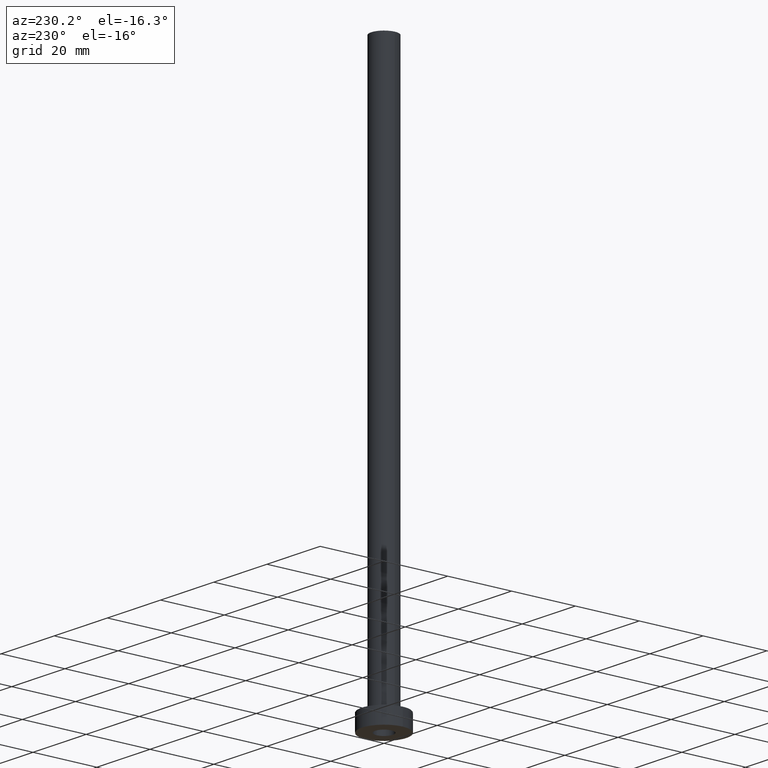
[diagram: clean part render]
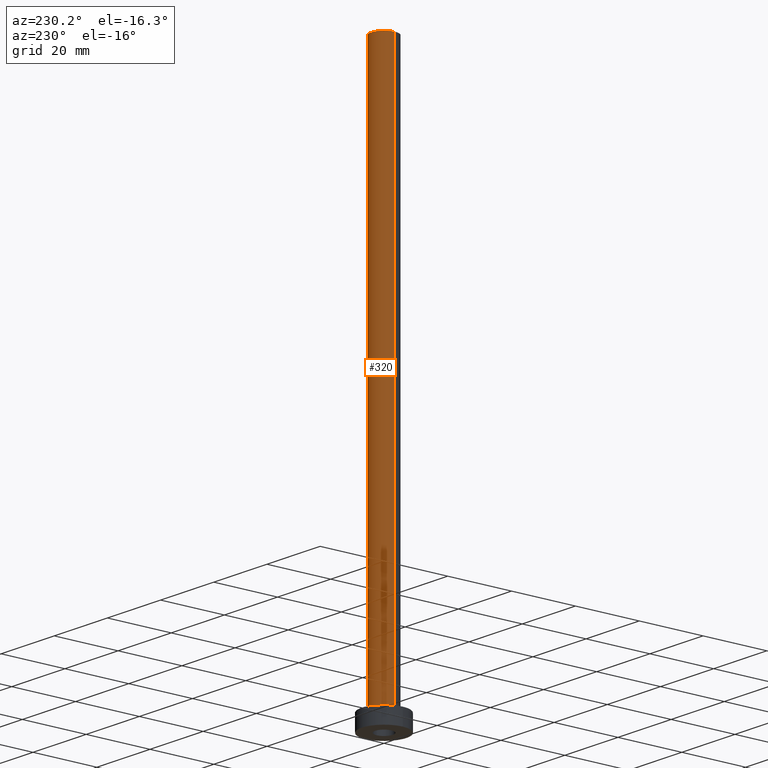
[diagram: same view with one face highlighted and labeled with its STEP entity id]
A machine part, auxiliary view. The second image highlights one B-rep face of the part: STEP entity #320.
In plain terms, the highlighted cylindrical surface (edge-blend (fillet) strip) has radius 4 mm, axis along (-0, -0, -1).
Its self-contained STEP definition (entity closure, byte-faithful):
#4 = DIRECTION ( 'NONE',  ( 0.000000000000000000, 0.000000000000000000, 1.000000000000000000 ) ) ;
#11 = CIRCLE ( 'NONE', #108, 4.000000000000000000 ) ;
#37 = DIRECTION ( 'NONE',  ( 0.000000000000000000, 0.000000000000000000, 1.000000000000000000 ) ) ;
#39 = CARTESIAN_POINT ( 'NONE',  ( 0.000000000000000000, 0.000000000000000000, 5.500000000000005329 ) ) ;
#46 = DIRECTION ( 'NONE',  ( -1.000000000000000000, 0.000000000000000000, 0.000000000000000000 ) ) ;
#54 = VERTEX_POINT ( 'NONE', #397 ) ;
#58 = ORIENTED_EDGE ( 'NONE', *, *, #168, .T. ) ;
#60 = VERTEX_POINT ( 'NONE', #173 ) ;
#75 = CARTESIAN_POINT ( 'NONE',  ( 0.000000000000000000, 0.000000000000000000, 175.0000000000000284 ) ) ;
#76 = CARTESIAN_POINT ( 'NONE',  ( -4.000000000000000000, 0.000000000000000000, 175.0000000000000284 ) ) ;
#100 = VERTEX_POINT ( 'NONE', #430 ) ;
#108 = AXIS2_PLACEMENT_3D ( 'NONE', #353, #37, #256 ) ;
#111 = DIRECTION ( 'NONE',  ( -0.000000000000000000, -0.000000000000000000, -1.000000000000000000 ) ) ;
#125 = ORIENTED_EDGE ( 'NONE', *, *, #164, .T. ) ;
#155 = ORIENTED_EDGE ( 'NONE', *, *, #326, .F. ) ;
#164 = EDGE_CURVE ( 'NONE', #54, #100, #391, .T. ) ;
#168 = EDGE_CURVE ( 'NONE', #100, #60, #383, .T. ) ;
#173 = CARTESIAN_POINT ( 'NONE',  ( -4.000000000000000000, 0.000000000000000000, 5.500000000000005329 ) ) ;
#177 = LINE ( 'NONE', #331, #394 ) ;
#209 = VECTOR ( 'NONE', #111, 1000.000000000000000 ) ;
#213 = CYLINDRICAL_SURFACE ( 'NONE', #309, 4.000000000000000000 ) ;
#253 = FACE_OUTER_BOUND ( 'NONE', #370, .T. ) ;
#256 = DIRECTION ( 'NONE',  ( 1.000000000000000000, 0.000000000000000000, 0.000000000000000000 ) ) ;
#309 = AXIS2_PLACEMENT_3D ( 'NONE', #75, #398, #46 ) ;
#320 = ADVANCED_FACE ( 'NONE', ( #253 ), #213, .T. ) ;
#326 = EDGE_CURVE ( 'NONE', #451, #60, #177, .T. ) ;
#331 = CARTESIAN_POINT ( 'NONE',  ( -4.000000000000000000, 0.000000000000000000, 175.0000000000000284 ) ) ;
#353 = CARTESIAN_POINT ( 'NONE',  ( 0.000000000000000000, 0.000000000000000000, 175.0000000000000284 ) ) ;
#358 = DIRECTION ( 'NONE',  ( 1.000000000000000000, 0.000000000000000000, 0.000000000000000000 ) ) ;
#370 = EDGE_LOOP ( 'NONE', ( #437, #125, #58, #155 ) ) ;
#383 = CIRCLE ( 'NONE', #442, 4.000000000000000000 ) ;
#391 = LINE ( 'NONE', #434, #209 ) ;
#394 = VECTOR ( 'NONE', #436, 1000.000000000000000 ) ;
#397 = CARTESIAN_POINT ( 'NONE',  ( 4.000000000000000000, 4.898587196589412829E-16, 175.0000000000000284 ) ) ;
#398 = DIRECTION ( 'NONE',  ( -0.000000000000000000, -0.000000000000000000, -1.000000000000000000 ) ) ;
#430 = CARTESIAN_POINT ( 'NONE',  ( 4.000000000000000000, 4.898587196589412829E-16, 5.500000000000005329 ) ) ;
#431 = EDGE_CURVE ( 'NONE', #54, #451, #11, .T. ) ;
#434 = CARTESIAN_POINT ( 'NONE',  ( 4.000000000000000000, 4.898587196589412829E-16, 175.0000000000000284 ) ) ;
#436 = DIRECTION ( 'NONE',  ( -0.000000000000000000, -0.000000000000000000, -1.000000000000000000 ) ) ;
#437 = ORIENTED_EDGE ( 'NONE', *, *, #431, .F. ) ;
#442 = AXIS2_PLACEMENT_3D ( 'NONE', #39, #4, #358 ) ;
#451 = VERTEX_POINT ( 'NONE', #76 ) ;